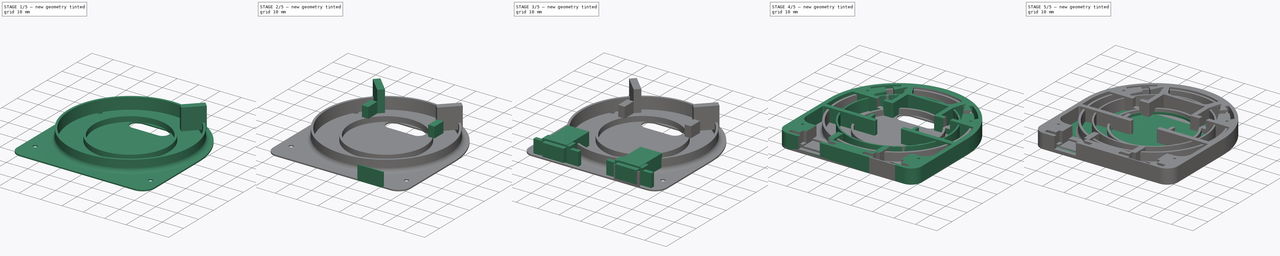
[diagram: build sequence overview — one tinted view per stage of 5, left to right]
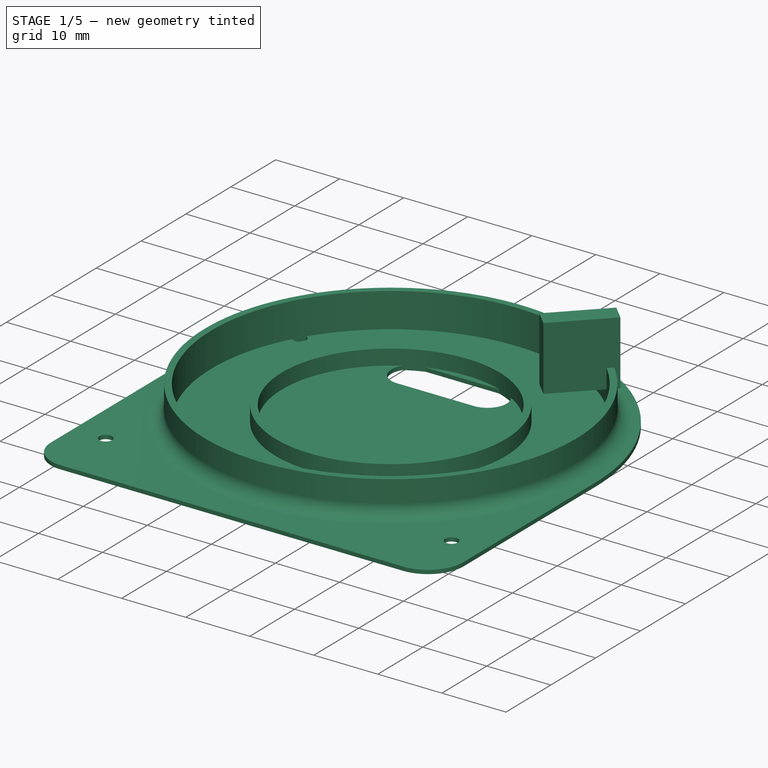
[diagram: stage 1 of 5 — iso view after this stage's code; geometry added in this stage tinted green]
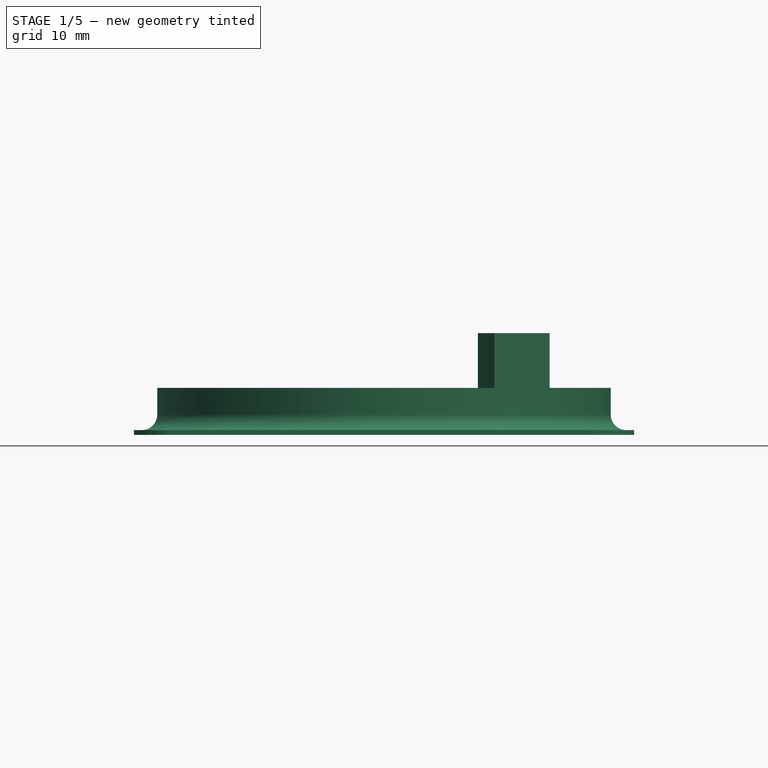
[diagram: stage 1 of 5 — front view after this stage's code; geometry added in this stage tinted green]
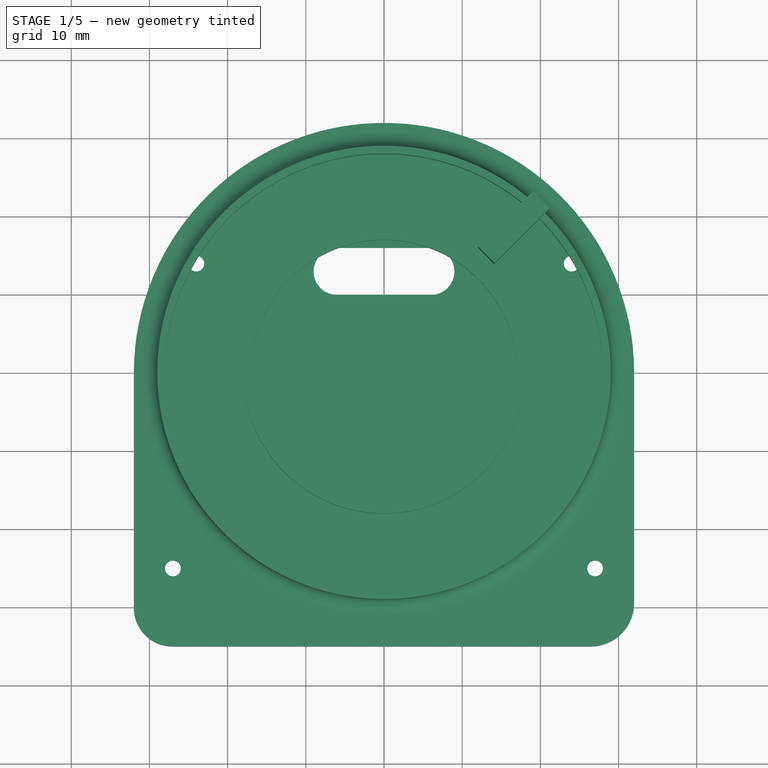
[diagram: stage 1 of 5 — top view after this stage's code; geometry added in this stage tinted green]
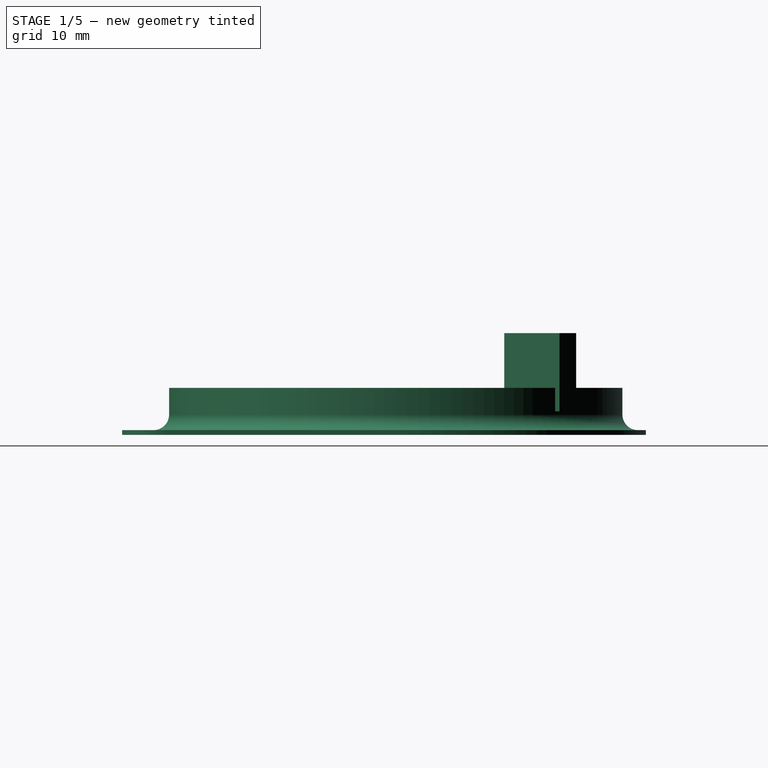
[diagram: stage 1 of 5 — right view after this stage's code; geometry added in this stage tinted green]
FCSTD DOCUMENT  (FreeCAD 0.20R29603 (Git))
Label: LEDlamp2
License: All rights reserved
LicenseURL: http://en.wikipedia.org/wiki/All_rights_reserved
objects: Part::Box×10, Sketcher::SketchObject×7, Part::MultiFuse×6, PartDesign::Body×5, PartDesign::Pad×5, Part::FeaturePython×4, Spreadsheet::Sheet×2, Part::Cut×2, Part::Extrusion×1, PartDesign::Pocket×1, Part::Fillet×1
note: 47 computed .brp shape members not serialized (recipe doc carries the construction recipe); baked Part::Feature solids carry a one-line shape summary decoded from their .brp

FEATURE [Part::Box] Box009  label="wire12"
  AttacherType = Attacher::AttachEngine3D
  Height = 10
  Length = 3
  Placement = pos=(12,16,3) rot=(0,0,-1;0.785398rad)
  Width = 10
FEATURE [PartDesign::Pad] Pad004
  Direction = (0,0,1)
  Length = 0.6
  Length2 = 10
  Profile = -> Sketch003
  ReferenceAxis = -> Sketch003 [N_Axis]
  Type = 0
FEATURE [PartDesign::Body] Body005
  Group = -> [Sketch003,Pad004]
  Origin = -> Origin005
  Tip = -> Pad004
FEATURE [Part::FeaturePython] Tube001  # WARN: FeaturePython — macro-defined, semantics opaque (R4)
  AttacherType = Attacher::AttachEngine3D
  Height = 6
  InnerRadius = 28
  OuterRadius = 29
FEATURE [Part::FeaturePython] Tube002  # WARN: FeaturePython — macro-defined, semantics opaque (R4)
  AttacherType = Attacher::AttachEngine3D
  Height = 3
  InnerRadius = 17
  OuterRadius = 18
FEATURE [Part::MultiFuse] Fusion005
  Shapes = -> [Body005,Tube001,Tube002]
FEATURE [Part::Fillet] Fillet  label="top_lotos_2"
  Base = -> Fusion005
  Edges = 1 edges r=2: [Edge22]
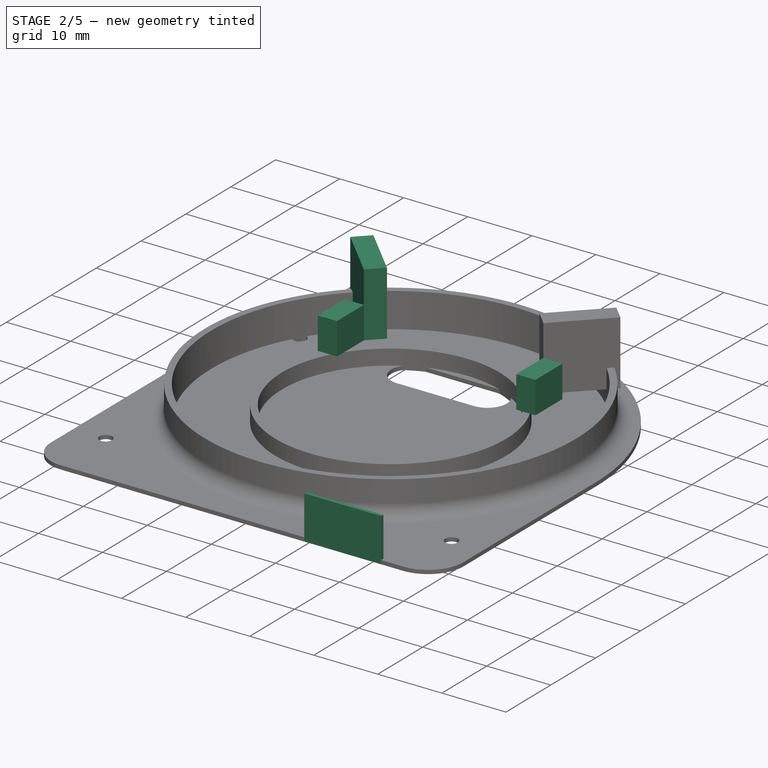
[diagram: stage 2 of 5 — iso view after this stage's code; geometry added in this stage tinted green]
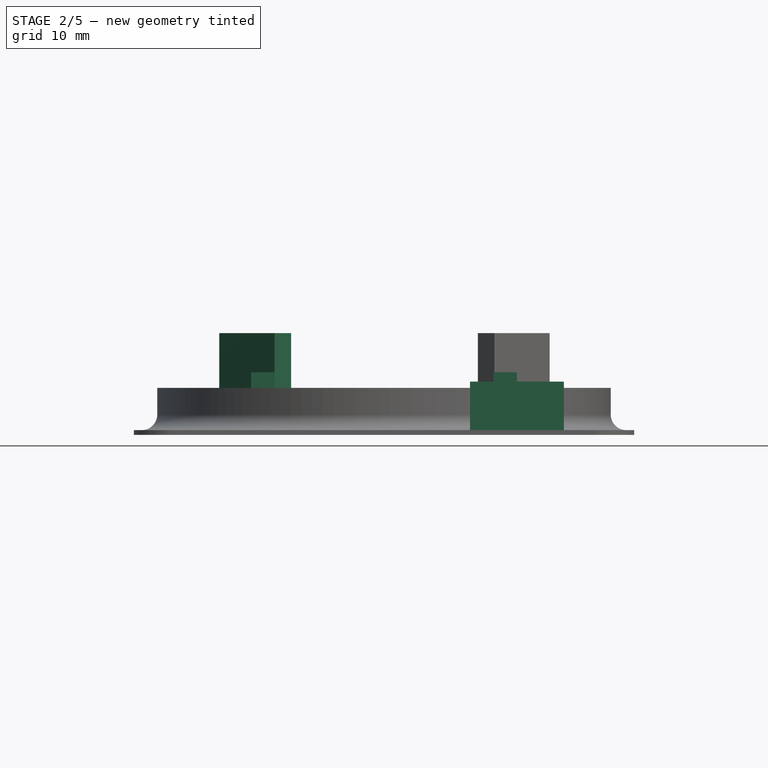
[diagram: stage 2 of 5 — front view after this stage's code; geometry added in this stage tinted green]
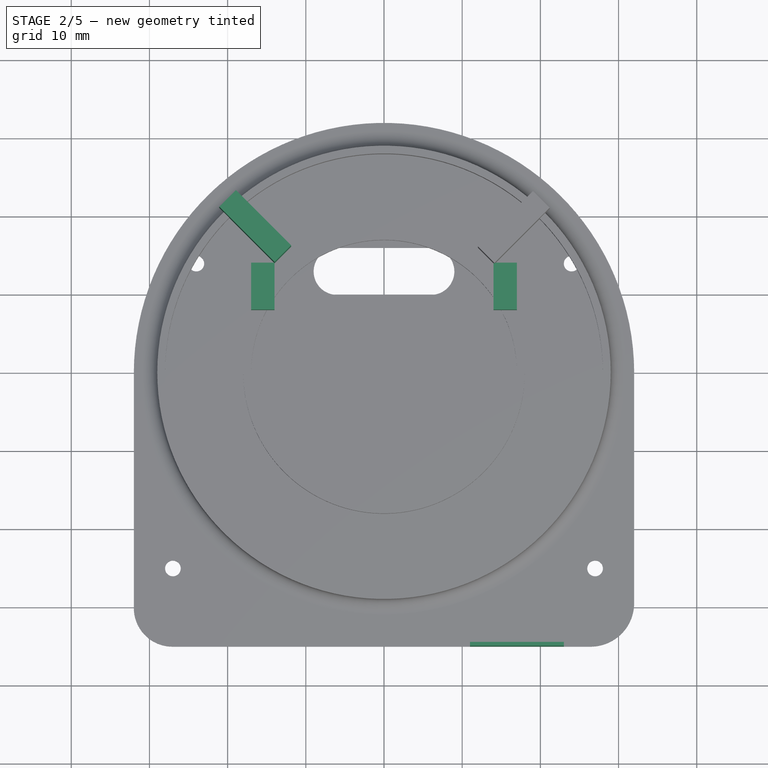
[diagram: stage 2 of 5 — top view after this stage's code; geometry added in this stage tinted green]
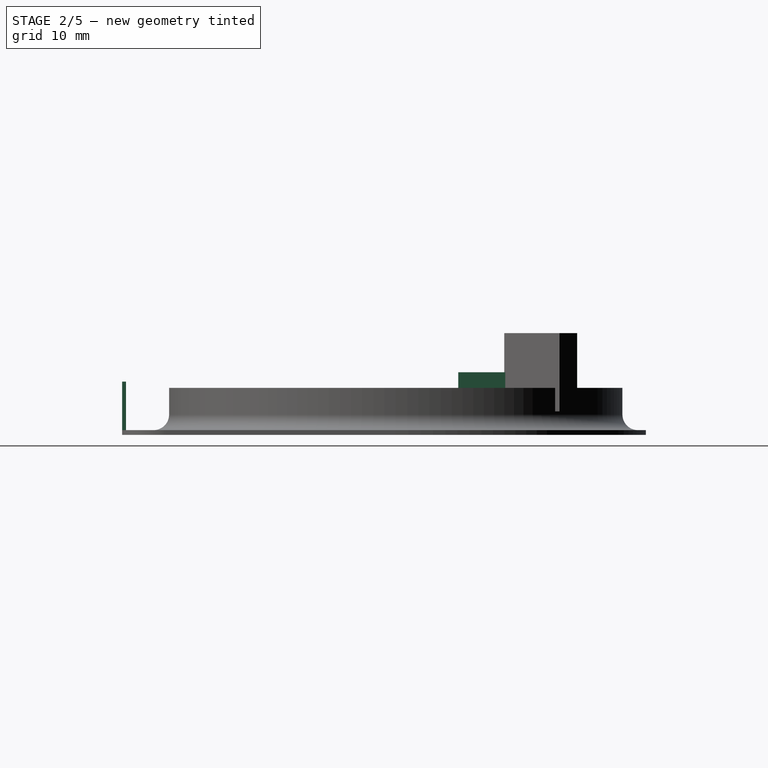
[diagram: stage 2 of 5 — right view after this stage's code; geometry added in this stage tinted green]
FEATURE [Part::Box] Box004  label="Куб"
  AttacherType = Attacher::AttachEngine3D
  Height = 0.6
  Length = 22
  Placement = pos=(-11,-31,0) rot=(0,0,1;0rad)
  Width = 29
FEATURE [Part::Box] Box005  label="Куб001"
  AttacherType = Attacher::AttachEngine3D
  Height = 6.8
  Length = 12
  Placement = pos=(11,-35,0) rot=(0,0,1;0rad)
  Width = 0.5
FEATURE [Part::Box] Box006  label="wire01"
  AttacherType = Attacher::AttachEngine3D
  Height = 5
  Length = 3
  Placement = pos=(-17,8,3) rot=(0,0,1;0rad)
  Width = 6
FEATURE [Part::Box] Box007  label="wire02"
  AttacherType = Attacher::AttachEngine3D
  Height = 5
  Length = 3
  Placement = pos=(14,8,3) rot=(0,0,1;0rad)
  Width = 6
FEATURE [Part::Box] Box008  label="wire11"
  AttacherType = Attacher::AttachEngine3D
  Height = 10
  Length = 3
  Placement = pos=(-14,14,3) rot=(0,0,1;0.785398rad)
  Width = 10
FEATURE [Part::MultiFuse] Fusion004  label="wires"
  Shapes = -> [Box006,Box007,Box008,Box009]
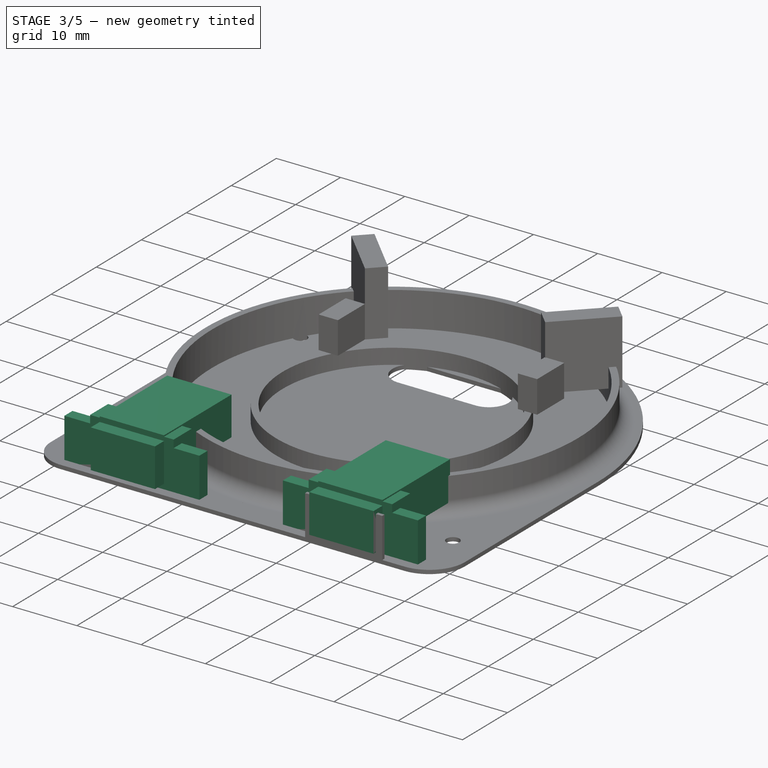
[diagram: stage 3 of 5 — iso view after this stage's code; geometry added in this stage tinted green]
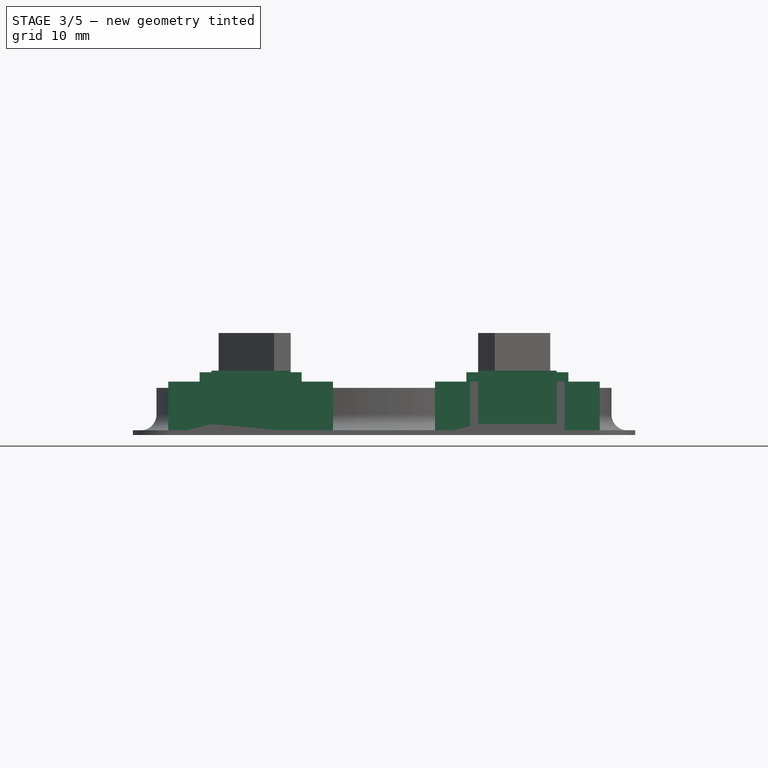
[diagram: stage 3 of 5 — front view after this stage's code; geometry added in this stage tinted green]
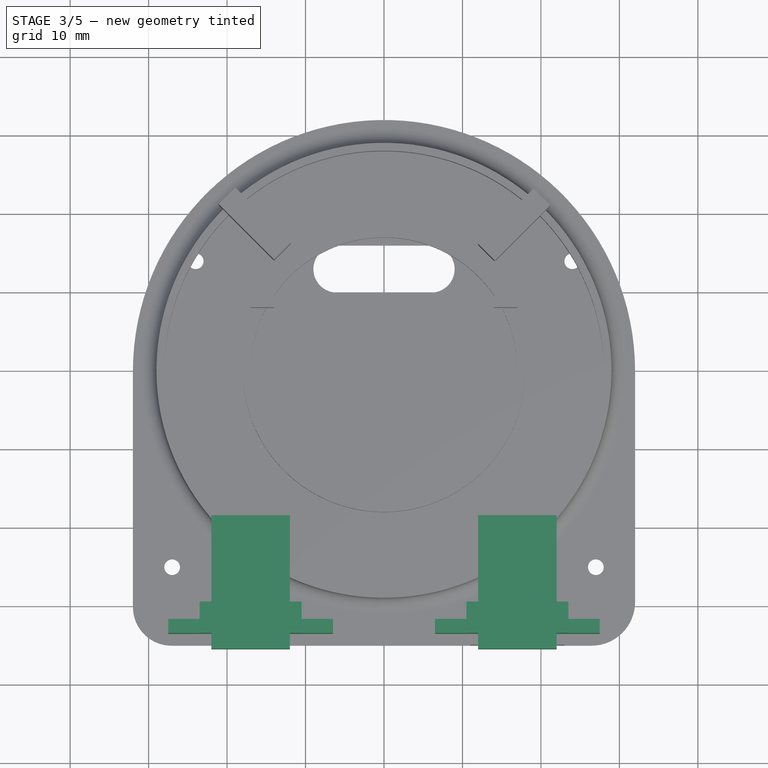
[diagram: stage 3 of 5 — top view after this stage's code; geometry added in this stage tinted green]
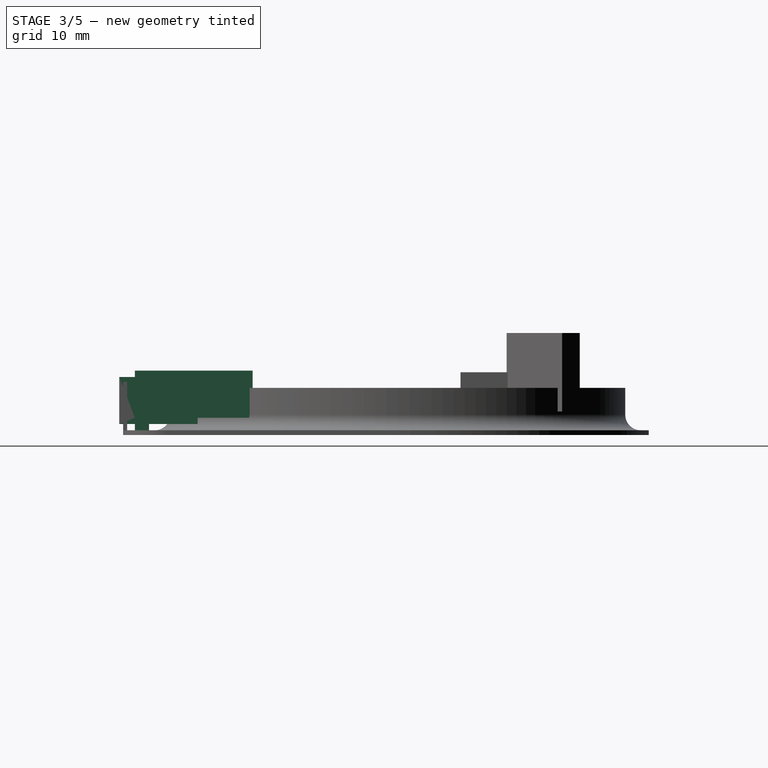
[diagram: stage 3 of 5 — right view after this stage's code; geometry added in this stage tinted green]
FEATURE [Part::Box] Box  label="front"
  AttacherType = Attacher::AttachEngine3D
  Height = 6.8
  Length = 21
  Placement = pos=(-10.5,0,0) rot=(0,0,1;0rad)
  Width = 1.8
  expr: .Placement.Base.x = -Spreadsheet001.frW / 2
  expr: Height = Spreadsheet001.frH
  expr: Length = Spreadsheet001.frW
  expr: Width = Spreadsheet001.frT
FEATURE [Spreadsheet::Sheet] Spreadsheet001  label="sprTypeC"
  cells = A2=front; B2(frH)=6.8; E2(tol)=6; B3(frW)=21; B4(frT)=1.8; A6=sch; B6(schW)=10; B7(schL)=15; A9=pin; B9(pinZ)=1.4; B10(pinL)=10; A12=solder; B12(solderW)=13
FEATURE [Part::Box] Box001  label="sch001"
  AttacherType = Attacher::AttachEngine3D
  Height = 6
  Length = 10
  Placement = pos=(-5,0,2.2) rot=(0,0,1;0rad)
  Width = 15
  expr: .Placement.Base.x = -Spreadsheet001.schW / 2
  expr: Height = Spreadsheet001.tol
  expr: Length = Spreadsheet001.schW
  expr: Width = Spreadsheet001.schL
FEATURE [Part::Box] Box002  label="pin"
  AttacherType = Attacher::AttachEngine3D
  Height = 6
  Length = 10
  Placement = pos=(-5,-2,1.4) rot=(0,0,1;0rad)
  Width = 10
  expr: .Placement.Base.x = -Spreadsheet001.pinL / 2
  expr: .Placement.Base.z = Spreadsheet001.pinZ
  expr: Height = Spreadsheet001.tol
  expr: Length = Spreadsheet001.pinL
FEATURE [Part::Box] Box003  label="solder"
  AttacherType = Attacher::AttachEngine3D
  Height = 6
  Length = 13
  Placement = pos=(-6.5,0,2) rot=(0,0,1;0rad)
  Width = 4
  expr: .Placement.Base.x = -Spreadsheet001.solderW / 2
  expr: Height = Spreadsheet001.tol
  expr: Length = Spreadsheet001.solderW
FEATURE [Part::MultiFuse] Fusion  label="typeC"
  Placement = pos=(-17,-33.5,0) rot=(0,0,1;0rad)
  Shapes = -> [Box,Box001,Box002,Box003]
  expr: .Placement.Base.x = -Spreadsheet.pwr5x
FEATURE [Part::FeaturePython] Array  # Draft array (typed FeaturePython)
  AlwaysSyncPlacement = false
  Angle = 360
  ArrayType = 0
  Axis = (0,0,1)
  Base = -> Fusion
  Center = (0,0,0)
  Count = 2
  ExpandArray = false
  Fuse = false
  IntervalAxis = (0,0,0)
  IntervalX = (34,0,0)
  IntervalY = (0,100,0)
  IntervalZ = (0,0,100)
  NumberCircles = 3
  NumberPolar = 5
  NumberX = 2
  NumberY = 1
  NumberZ = 1
  PlacementList = 2 placements: [(-17,-33.5,0),(17,-33.5,0)]
  RadialDistance = 50
  ScaleList = (2) [(1,1,1),(1,1,1)]
  Symmetry = 1
  TangentialDistance = 25
  expr: .IntervalX.x = 2 * Spreadsheet.pwr5x
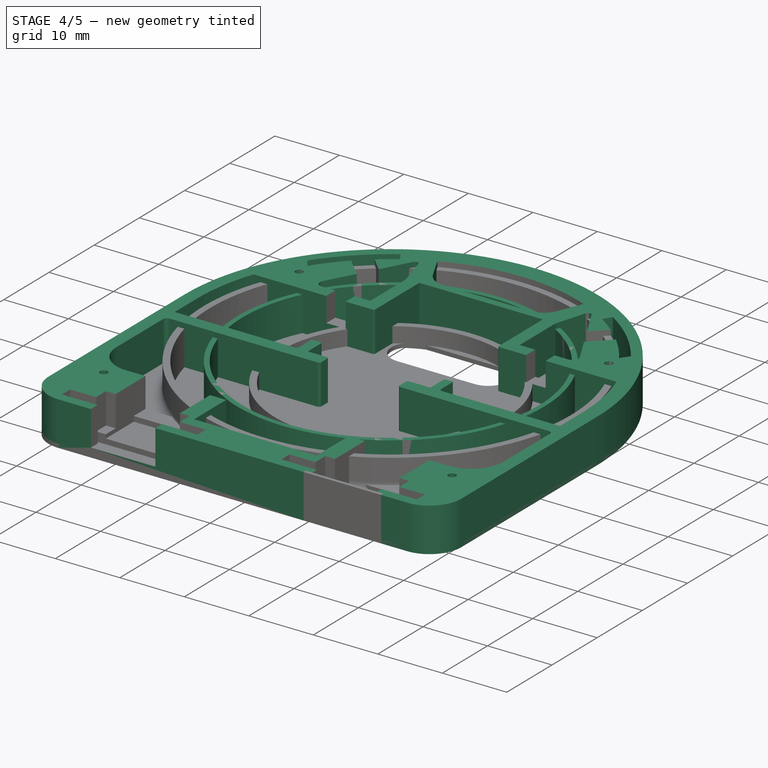
[diagram: stage 4 of 5 — iso view after this stage's code; geometry added in this stage tinted green]
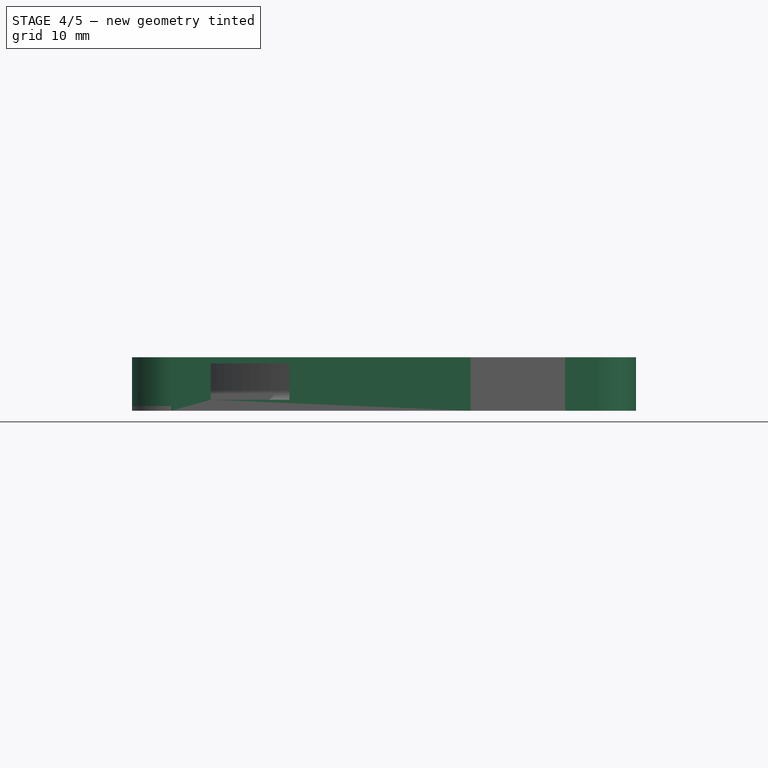
[diagram: stage 4 of 5 — front view after this stage's code; geometry added in this stage tinted green]
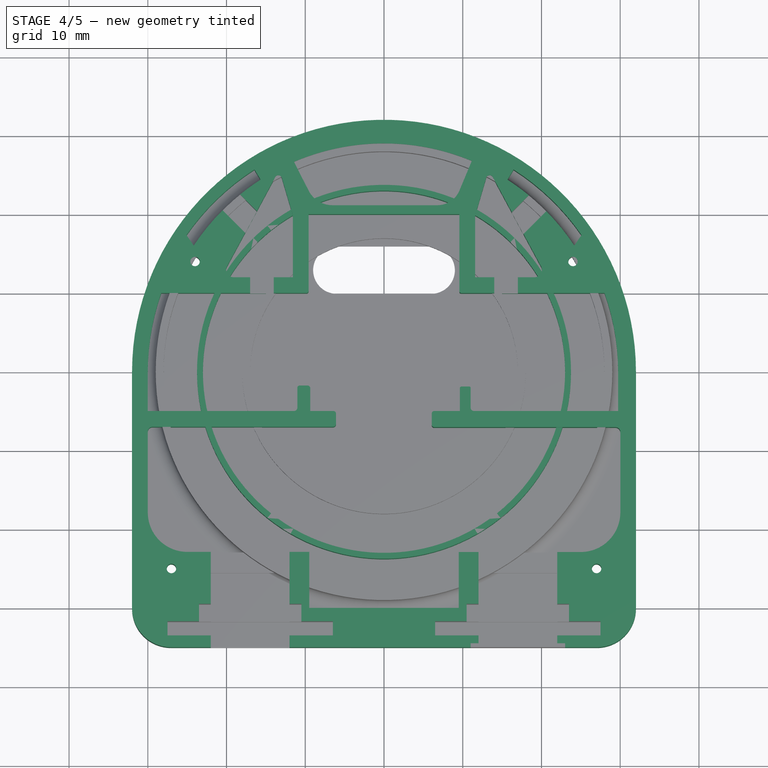
[diagram: stage 4 of 5 — top view after this stage's code; geometry added in this stage tinted green]
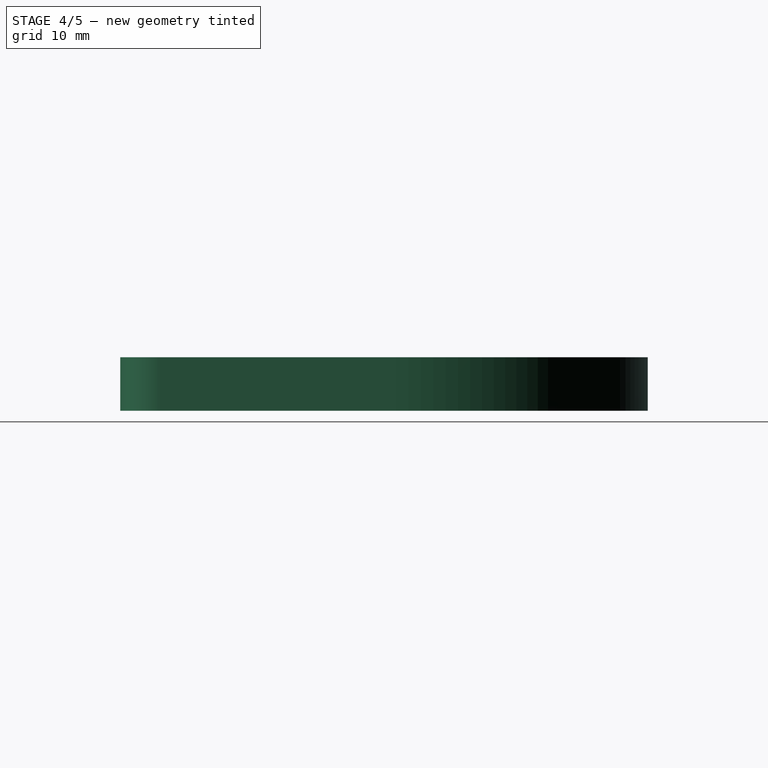
[diagram: stage 4 of 5 — right view after this stage's code; geometry added in this stage tinted green]
FEATURE [PartDesign::Body] Body  label="base"
  Group = -> [Sketch,Pad]
  Origin = -> Origin
  Tip = -> Pad
FEATURE [Part::Extrusion] Extrude
  Base = -> Sketch001
  Dir = (0,0,1)
  DirMode = 2
  FaceMakerClass = Part::FaceMakerBullseye
  LengthFwd = 6.8
  LengthRev = 0
  Solid = true
  Symmetric = false
FEATURE [Part::Cut] Cut
  Base = -> Extrude
  Tool = -> Array
FEATURE [PartDesign::Body] Body004  label="topL_1"
  Group = -> [Sketch004,Pad002,Sketch006,Pad003]
  Origin = -> Origin004
  Tip = -> Pad003
FEATURE [Part::MultiFuse] Fusion001
  Shapes = -> [Cut,Box004]
FEATURE [Part::FeaturePython] Tube  # WARN: FeaturePython — macro-defined, semantics opaque (R4)
  AttacherType = Attacher::AttachEngine3D
  Height = 6
  InnerRadius = 23
  OuterRadius = 23.75
  expr: InnerRadius = 46 / 2
  expr: OuterRadius = 47.5 / 2
FEATURE [Part::MultiFuse] Fusion003
  Shapes = -> [Fusion001,Box005]
FEATURE [Part::Cut] Cut001
  Base = -> Fusion003
  Tool = -> Fusion004
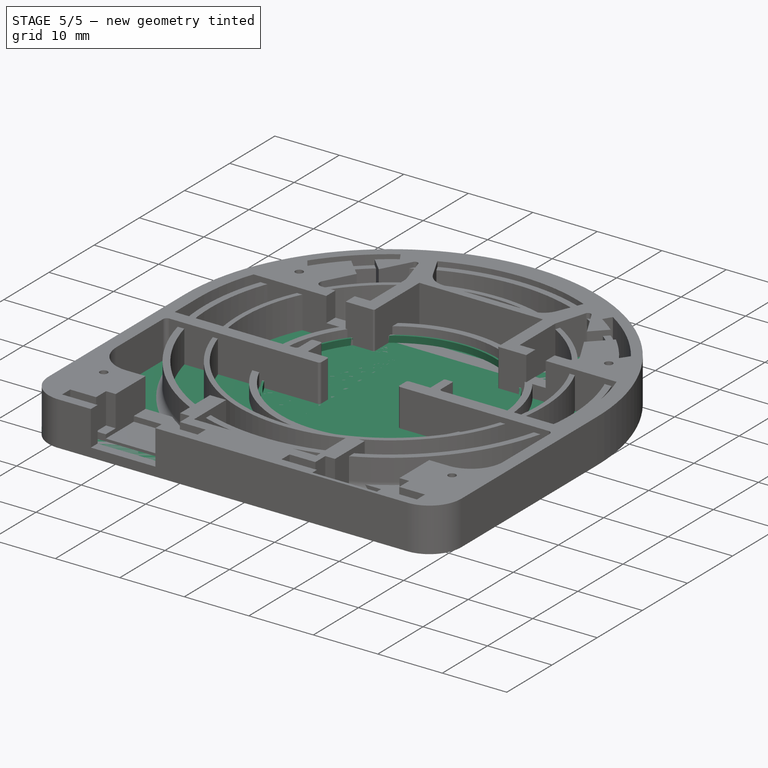
[diagram: stage 5 of 5 — iso view after this stage's code; geometry added in this stage tinted green]
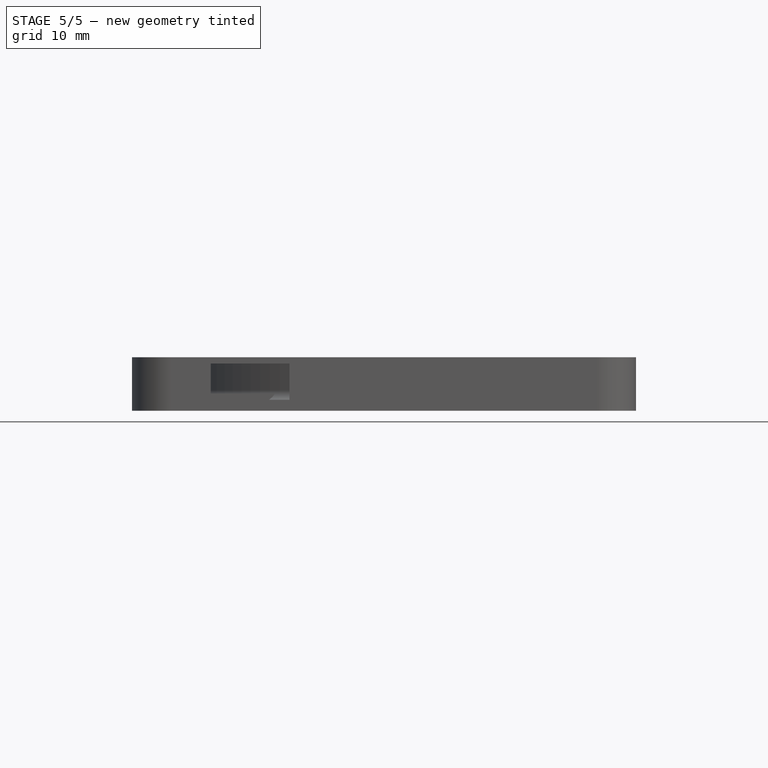
[diagram: stage 5 of 5 — front view after this stage's code; geometry added in this stage tinted green]
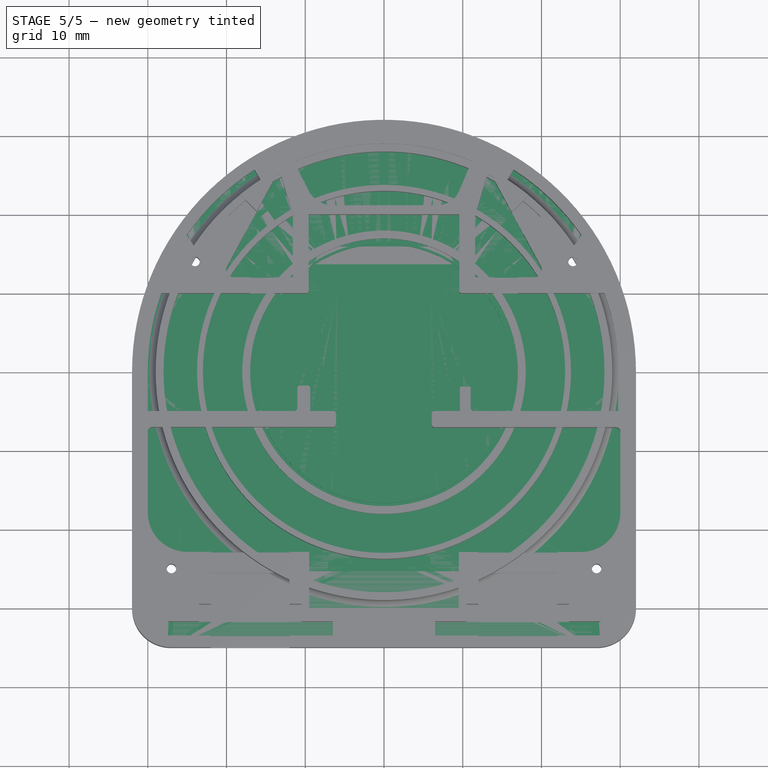
[diagram: stage 5 of 5 — top view after this stage's code; geometry added in this stage tinted green]
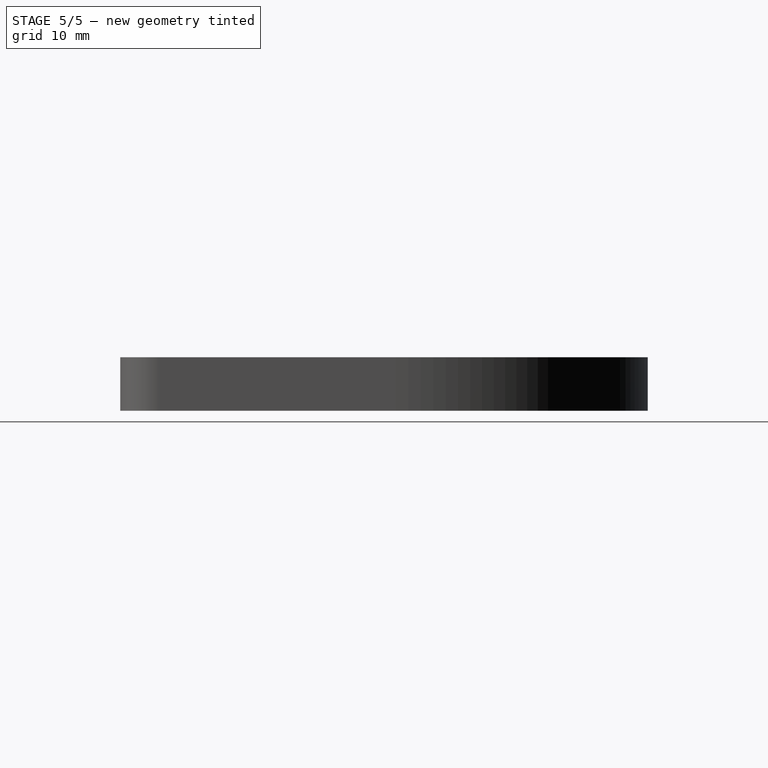
[diagram: stage 5 of 5 — right view after this stage's code; geometry added in this stage tinted green]
FEATURE [Spreadsheet::Sheet] Spreadsheet
  cells = A2=outArc; B2(outD)=64; B3(outH)=35; A5=touch; B5(tchY)=-5; B6(tchX)=11; A8(pwr5_X)=pwr5; B8(pwr5x)=17; A10=scr1Y; B10(scr1Y)=10; A11=scr2Y; B11(scr2Y)=14; A12=scr1D; B12(scr1D)=2; A13=scr2D; B13(scr2D)=2; A15=scr1X; B15(scr1X)=5; A16=scr2X; B16(scr2X)=24; A18=bodyScrew; B18(bodyScrew)=1.2
FEATURE [Sketcher::SketchObject] Sketch
  FullyConstrained = false
  MapMode = 5
  Support = -> [XY_Plane]
  expr: Constraints[17] = Spreadsheet.scr1D
  expr: Constraints[18] = Spreadsheet.scr1D
  expr: Constraints[19] = Spreadsheet.scr1Y
  expr: Constraints[20] = Spreadsheet.scr1X
  expr: Constraints[24] = Spreadsheet.scr2Y
  expr: Constraints[26] = Spreadsheet.scr2X
  expr: Constraints[3] = Spreadsheet.outD
  expr: Constraints[8] = Spreadsheet.outH
  sketch-geometry (12):
    g0: ArcOfCircle CenterX=0 CenterY=0 CenterZ=0 NormalX=0 NormalY=0 NormalZ=1 AngleXU=0 Radius=32 StartAngle=0 EndAngle=3.14159
    g1: LineSegment StartX=-32 StartY=3.9e-15 StartZ=0 EndX=-32 EndY=-30.0559 EndZ=0
    g2: LineSegment StartX=-27.0559 StartY=-35 StartZ=0 EndX=26.4276 EndY=-35 EndZ=0
    g3: LineSegment StartX=32 StartY=-29.4276 StartZ=0 EndX=32 EndY=0 EndZ=0
    g4: ArcOfCircle CenterX=-27.0559 CenterY=-30.0559 CenterZ=0 NormalX=0 NormalY=0 NormalZ=1 AngleXU=0 Radius=4.94407 StartAngle=3.14159 EndAngle=4.71239
    g5: GeomPoint X=-32 Y=-35 Z=0
    g6: ArcOfCircle CenterX=26.4276 CenterY=-29.4276 CenterZ=0 NormalX=0 NormalY=0 NormalZ=1 AngleXU=0 Radius=5.57244 StartAngle=4.71239 EndAngle=6.28319
    g7: GeomPoint X=32 Y=-35 Z=0
    g8: Circle CenterX=-27 CenterY=-25 CenterZ=0 NormalX=0 NormalY=0 NormalZ=1 AngleXU=0 Radius=1
    g9: Circle CenterX=27 CenterY=-25 CenterZ=0 NormalX=0 NormalY=0 NormalZ=1 AngleXU=0 Radius=1
    g10: Circle CenterX=24 CenterY=14 CenterZ=0 NormalX=0 NormalY=0 NormalZ=1 AngleXU=0 Radius=1
    g11: Circle CenterX=-24 CenterY=14 CenterZ=0 NormalX=0 NormalY=0 NormalZ=1 AngleXU=0 Radius=1
  constraints (27):
    c: Coincident(g0,g-1)
    c: PointOnObject(g0,g-1)
    c: PointOnObject(g0,g-1)
    c: Diameter(g0) = 64
    c: Tangent(g0,g1) = -1.5708
    c: Horizontal(g2)
    c: Coincident(g3,g0)
    c: Vertical(g3)
    c: DistanceY(g7,g3) = 35
    c: PointOnObject(g5,g1)
    c: PointOnObject(g5,g2)
    c: Tangent(g1,g4) = -1.5708
    c: Tangent(g2,g4) = -1.5708
    c: PointOnObject(g7,g2)
    c: PointOnObject(g7,g3)
    c: Tangent(g2,g6) = -1.5708
    c: Tangent(g3,g6) = -1.5708
    c: Diameter(g8) = 2
    c: Diameter(g9) = 2
    c: DistanceY(g2,g8) = 10
    c: DistanceX(g9,g3) = 5
    c: Symmetric(g8,g9,g-2)
    c: Equal(g9,g10)
    c: Equal(g10,g11)
    c: DistanceY(g-1,g11) = 14
    c: Symmetric(g10,g11,g-2)
    c: DistanceX(g11,g-1) = 24
FEATURE [Sketcher::SketchObject] Sketch001
  FullyConstrained = false
  MapMode = 5
  Support = -> [XY_Plane001]
  expr: Constraints[3] = Spreadsheet.outD
  expr: Constraints[55] = Spreadsheet.bodyScrew
  expr: Constraints[56] = Spreadsheet.scr1Y
  expr: Constraints[62] = Spreadsheet.bodyScrew
  expr: Constraints[64] = Spreadsheet.scr2X
  expr: Constraints[8] = Spreadsheet.outH
  sketch-geometry (90):
    g0: ArcOfCircle CenterX=0 CenterY=0 CenterZ=0 NormalX=0 NormalY=0 NormalZ=1 AngleXU=0 Radius=32 StartAngle=0 EndAngle=3.14159
    g1: LineSegment StartX=-32 StartY=3.9e-15 StartZ=0 EndX=-32 EndY=-30.0355 EndZ=0
    g2: LineSegment StartX=-27.0355 StartY=-35 StartZ=0 EndX=27.05 EndY=-35 EndZ=0
    g3: LineSegment StartX=32 StartY=-30.05 StartZ=0 EndX=32 EndY=0 EndZ=0
    g4: LineSegment StartX=-28.2835 StartY=10.0021 StartZ=0 EndX=-11.2835 EndY=10.0021 EndZ=0
    g5: LineSegment StartX=-11.45 StartY=-4.99792 StartZ=0 EndX=-30 EndY=-4.99792 EndZ=0
    g6: LineSegment StartX=11 StartY=10 StartZ=0 EndX=28 EndY=10 EndZ=0
    g7: LineSegment StartX=29.7321 StartY=-5 StartZ=0 EndX=11.4496 EndY=-5 EndZ=0
    g8: LineSegment StartX=9.5 StartY=-30 StartZ=0 EndX=-9.5 EndY=-30 EndZ=0
    g9: LineSegment StartX=-9.58091 StartY=20.0039 StartZ=0 EndX=9.58091 EndY=20.0039 EndZ=0
    g10: ArcOfCircle CenterX=0 CenterY=0 CenterZ=0 NormalX=0 NormalY=0 NormalZ=1 AngleXU=0 Radius=29 StartAngle=1.17614 EndAngle=1.97592
    g11: LineSegment StartX=-6.53689 StartY=21.1476 StartZ=0 EndX=6.77672 EndY=21.1476 EndZ=0
    g12: LineSegment StartX=11.1503 StartY=26.7707 StartZ=0 EndX=9.58106 EndY=23.0151 EndZ=0
    g13: LineSegment StartX=-9.58106 StartY=23.0151 StartZ=0 EndX=-11.4299 EndY=26.6525 EndZ=0
    g14: ArcOfCircle CenterX=6.77672 CenterY=24.1869 CenterZ=0 NormalX=0 NormalY=0 NormalZ=1 AngleXU=0 Radius=3.03931 StartAngle=4.71239 EndAngle=5.88739
    g15: ArcOfCircle CenterX=-6.53689 CenterY=24.5625 CenterZ=0 NormalX=0 NormalY=0 NormalZ=1 AngleXU=0 Radius=3.41485 StartAngle=3.61185 EndAngle=4.71239
    g16: ArcOfCircle CenterX=0 CenterY=0 CenterZ=0 NormalX=0 NormalY=0 NormalZ=1 AngleXU=0 Radius=30.5 StartAngle=2.14078 EndAngle=2.53646
    g17: ArcOfCircle CenterX=0 CenterY=0 CenterZ=0 NormalX=0 NormalY=0 NormalZ=1 AngleXU=0 Radius=29 StartAngle=2.14194 EndAngle=2.55597
    g18: LineSegment StartX=-15.6773 StartY=24.3972 StartZ=0 EndX=-16.4583 EndY=25.6783 EndZ=0
    g19: LineSegment StartX=-24.1677 StartY=16.0288 StartZ=0 EndX=-25.084 EndY=17.3505 EndZ=0
    g20: ArcOfCircle CenterX=0 CenterY=0 CenterZ=0 NormalX=0 NormalY=0 NormalZ=1 AngleXU=0 Radius=30.5 StartAngle=0.605132 EndAngle=1.00082
    g21: ArcOfCircle CenterX=0 CenterY=0 CenterZ=0 NormalX=0 NormalY=0 NormalZ=1 AngleXU=0 Radius=29 StartAngle=0.585621 EndAngle=0.999649
    g22: LineSegment StartX=16.4583 StartY=25.6783 StartZ=0 EndX=15.6773 EndY=24.3972 EndZ=0
    g23: LineSegment StartX=25.084 StartY=17.3505 StartZ=0 EndX=24.1677 EndY=16.0288 EndZ=0
    g24: ArcOfCircle CenterX=-27.0355 CenterY=-30.0355 CenterZ=0 NormalX=0 NormalY=0 NormalZ=1 AngleXU=0 Radius=4.96452 StartAngle=3.14159 EndAngle=4.71239
    g25: GeomPoint X=-32 Y=-35 Z=0
    g26: ArcOfCircle CenterX=27.05 CenterY=-30.05 CenterZ=0 NormalX=0 NormalY=0 NormalZ=1 AngleXU=0 Radius=4.95002 StartAngle=4.71239 EndAngle=6.28319
    g27: GeomPoint X=32 Y=-35 Z=0
    g28: LineSegment StartX=-11.5809 StartY=19.7379 StartZ=0 EndX=-11.5809 EndY=12 EndZ=0
    g29: LineSegment StartX=-19.9405 StartY=13.3757 StartZ=0 EndX=-13.8249 EndY=24.7091 EndZ=0
    g30: LineSegment StartX=-12.9758 StartY=24.6202 StartZ=0 EndX=-11.6207 EndY=20.014 EndZ=0
    g31: LineSegment StartX=12.9758 StartY=24.6202 StartZ=0 EndX=11.6207 EndY=20.014 EndZ=0
    g32: LineSegment StartX=11.5809 StartY=19.7379 StartZ=0 EndX=11.5809 EndY=12 EndZ=0
    g33: Circle CenterX=-27 CenterY=-25 CenterZ=0 NormalX=0 NormalY=0 NormalZ=1 AngleXU=0 Radius=0.6
    g34: Circle CenterX=27 CenterY=-25 CenterZ=0 NormalX=0 NormalY=0 NormalZ=1 AngleXU=0 Radius=0.6
    g35: LineSegment StartX=-19.1196 StartY=12 StartZ=0 EndX=-11.5809 EndY=12 EndZ=0
    g36: Circle CenterX=-24 CenterY=14 CenterZ=0 NormalX=0 NormalY=0 NormalZ=1 AngleXU=0 Radius=0.6
    g37: LineSegment StartX=13.8249 StartY=24.7091 StartZ=0 EndX=19.9405 EndY=13.3757 EndZ=0
    g38: LineSegment StartX=19.1196 StartY=12 StartZ=0 EndX=11.5809 EndY=12 EndZ=0
    g39: Circle CenterX=24 CenterY=14 CenterZ=0 NormalX=0 NormalY=0 NormalZ=1 AngleXU=0 Radius=0.6
    g40: ArcOfCircle CenterX=-24.9901 CenterY=-17.8792 CenterZ=0 NormalX=0 NormalY=0 NormalZ=1 AngleXU=0 Radius=5.00986 StartAngle=3.14159 EndAngle=4.71387
    g41: LineSegment StartX=-30 StartY=-11.2573 StartZ=0 EndX=-30 EndY=-17.8792 EndZ=0
    g42: ArcOfCircle CenterX=24.9901 CenterY=-17.8792 CenterZ=0 NormalX=0 NormalY=0 NormalZ=1 AngleXU=0 Radius=5.02597 StartAngle=4.71239 EndAngle=6.28319
    g43: LineSegment StartX=30.0161 StartY=-17.8792 StartZ=0 EndX=30.0161 EndY=-11.2571 EndZ=0
    g44: ArcOfCircle CenterX=0 CenterY=0 CenterZ=0 NormalX=0 NormalY=0 NormalZ=1 AngleXU=0 Radius=30 StartAngle=2.80168 EndAngle=3.14159
    g45: LineSegment StartX=-30 StartY=-4.99792 StartZ=0 EndX=-30 EndY=3.6e-15 EndZ=0
    g46: ArcOfCircle CenterX=0 CenterY=0 CenterZ=0 NormalX=0 NormalY=0 NormalZ=1 AngleXU=0 Radius=29.7321 StartAngle=0 EndAngle=0.343024
    g47: LineSegment StartX=29.7321 StartY=-5 StartZ=0 EndX=29.7321 EndY=0 EndZ=0
    g48: LineSegment StartX=-30 StartY=-11.2573 StartZ=0 EndX=-30 EndY=-7.60208 EndZ=0
    g49: LineSegment StartX=-29.4006 StartY=-7.00267 StartZ=0 EndX=-6.47729 EndY=-7.00267 EndZ=0
    g50: LineSegment StartX=6.39012 StartY=-7.04931 StartZ=0 EndX=29.4016 EndY=-7.04931 EndZ=0
    g51: LineSegment StartX=30.0161 StartY=-7.66384 StartZ=0 EndX=30.0161 EndY=-11.2571 EndZ=0
    g52: LineSegment StartX=-9.5 StartY=-30 StartZ=0 EndX=-9.5 EndY=-22.8891 EndZ=0
    g53: LineSegment StartX=9.5 StartY=-30 StartZ=0 EndX=9.5 EndY=-22.9052 EndZ=0
    g54: LineSegment StartX=-9.36535 StartY=-4.99876 StartZ=0 EndX=-6.41079 EndY=-4.99876 EndZ=0
    g55: LineSegment StartX=-6.10092 StartY=-5.30862 StartZ=0 EndX=-6.10092 EndY=-6.62631 EndZ=0
    g56: LineSegment StartX=9.63465 StartY=-4.99608 StartZ=0 EndX=6.38742 EndY=-4.99608 EndZ=0
    g57: LineSegment StartX=6.05794 StartY=-5.32556 StartZ=0 EndX=6.05794 EndY=-6.71713 EndZ=0
    g58: LineSegment StartX=9.58091 StartY=20.0039 StartZ=0 EndX=9.58091 EndY=10.2007 EndZ=0
    g59: LineSegment StartX=9.7816 StartY=10 StartZ=0 EndX=11 EndY=10 EndZ=0
    g60: LineSegment StartX=9.63465 StartY=-4.99608 StartZ=0 EndX=9.63465 EndY=-2.07935 EndZ=0
    g61: LineSegment StartX=9.8269 StartY=-1.88711 StartZ=0 EndX=10.8385 EndY=-1.88711 EndZ=0
    g62: LineSegment StartX=10.999 StartY=-2.04761 StartZ=0 EndX=10.999 EndY=-4.54943 EndZ=0
    g63: LineSegment StartX=-9.58091 StartY=20.0039 StartZ=0 EndX=-9.58091 EndY=10.2429 EndZ=0
    g64: LineSegment StartX=-9.8217 StartY=10.0021 StartZ=0 EndX=-11.2835 EndY=10.0021 EndZ=0
    g65: LineSegment StartX=-11.0021 StartY=-4.54998 StartZ=0 EndX=-11.0021 EndY=-2.04731 EndZ=0
    g66: LineSegment StartX=-10.7069 StartY=-1.75209 StartZ=0 EndX=-9.69528 EndY=-1.75209 EndZ=0
    g67: LineSegment StartX=-9.36535 StartY=-2.08203 StartZ=0 EndX=-9.36535 EndY=-4.99876 EndZ=0
    g68: ArcOfCircle CenterX=-19.1196 CenterY=12.9328 CenterZ=0 NormalX=0 NormalY=0 NormalZ=1 AngleXU=0 Radius=0.932779 StartAngle=2.64676 EndAngle=4.71239
    g69: ArcOfCircle CenterX=19.1196 CenterY=12.9328 CenterZ=0 NormalX=0 NormalY=0 NormalZ=1 AngleXU=0 Radius=0.932779 StartAngle=4.71239 EndAngle=6.77802
    g70: ArcOfCircle CenterX=-13.4187 CenterY=24.4899 CenterZ=0 NormalX=0 NormalY=0 NormalZ=1 AngleXU=0 Radius=0.461614 StartAngle=0.286129 EndAngle=2.64676
    g71: ArcOfCircle CenterX=13.4187 CenterY=24.4899 CenterZ=0 NormalX=0 NormalY=0 NormalZ=1 AngleXU=0 Radius=0.461614 StartAngle=0.494832 EndAngle=2.85546
    g72: ArcOfCircle CenterX=-12.5593 CenterY=19.7379 CenterZ=0 NormalX=0 NormalY=0 NormalZ=1 AngleXU=0 Radius=0.978363 StartAngle=0 EndAngle=0.286129
    g73: ArcOfCircle CenterX=12.5593 CenterY=19.7379 CenterZ=0 NormalX=0 NormalY=0 NormalZ=1 AngleXU=0 Radius=0.978363 StartAngle=2.85546 EndAngle=3.14159
    g74: ArcOfCircle CenterX=9.7816 CenterY=10.2007 CenterZ=0 NormalX=0 NormalY=0 NormalZ=1 AngleXU=0 Radius=0.20069 StartAngle=3.14159 EndAngle=4.71239
    g75: ArcOfCircle CenterX=29.4016 CenterY=-7.66384 CenterZ=0 NormalX=0 NormalY=0 NormalZ=1 AngleXU=0 Radius=0.614534 StartAngle=0 EndAngle=1.5708
    g76: ArcOfCircle CenterX=-29.4006 CenterY=-7.60208 CenterZ=0 NormalX=0 NormalY=0 NormalZ=1 AngleXU=0 Radius=0.599403 StartAngle=1.5708 EndAngle=3.14159
    g77: ArcOfCircle CenterX=-6.47729 CenterY=-6.62631 CenterZ=0 NormalX=0 NormalY=0 NormalZ=1 AngleXU=0 Radius=0.376366 StartAngle=4.71239 EndAngle=6.28319
    g78: ArcOfCircle CenterX=-6.41079 CenterY=-5.30862 CenterZ=0 NormalX=0 NormalY=0 NormalZ=1 AngleXU=0 Radius=0.309867 StartAngle=9e-16 EndAngle=1.5708
    g79: ArcOfCircle CenterX=6.39012 CenterY=-6.71713 CenterZ=0 NormalX=0 NormalY=0 NormalZ=1 AngleXU=0 Radius=0.332185 StartAngle=3.14159 EndAngle=4.71239
    g80: ArcOfCircle CenterX=6.38742 CenterY=-5.32556 CenterZ=0 NormalX=0 NormalY=0 NormalZ=1 AngleXU=0 Radius=0.329482 StartAngle=1.5708 EndAngle=3.14159
    g81: ArcOfCircle CenterX=-11.45 CenterY=-4.54998 CenterZ=0 NormalX=0 NormalY=0 NormalZ=1 AngleXU=0 Radius=0.447942 StartAngle=4.71239 EndAngle=6.28319
    g82: ArcOfCircle CenterX=11.4496 CenterY=-4.54943 CenterZ=0 NormalX=0 NormalY=0 NormalZ=1 AngleXU=0 Radius=0.450575 StartAngle=3.14159 EndAngle=4.71239
    g83: ArcOfCircle CenterX=-10.7069 CenterY=-2.04731 CenterZ=0 NormalX=0 NormalY=0 NormalZ=1 AngleXU=0 Radius=0.295218 StartAngle=1.5708 EndAngle=3.14159
    g84: ArcOfCircle CenterX=-9.69528 CenterY=-2.08203 CenterZ=0 NormalX=0 NormalY=0 NormalZ=1 AngleXU=0 Radius=0.329938 StartAngle=0 EndAngle=1.5708
    g85: ArcOfCircle CenterX=9.8269 CenterY=-2.07935 CenterZ=0 NormalX=0 NormalY=0 NormalZ=1 AngleXU=0 Radius=0.192244 StartAngle=1.5708 EndAngle=3.14159
    g86: ArcOfCircle CenterX=10.8385 CenterY=-2.04761 CenterZ=0 NormalX=0 NormalY=0 NormalZ=1 AngleXU=0 Radius=0.160505 StartAngle=8e-16 EndAngle=1.5708
    g87: ArcOfCircle CenterX=-9.8217 CenterY=10.2429 CenterZ=0 NormalX=0 NormalY=0 NormalZ=1 AngleXU=0 Radius=0.240788 StartAngle=4.71239 EndAngle=6.28319
    g88: LineSegment StartX=-24.9827 StartY=-22.8891 StartZ=0 EndX=-9.5 EndY=-22.8891 EndZ=0
    g89: LineSegment StartX=24.9901 StartY=-22.9052 StartZ=0 EndX=9.5 EndY=-22.9052 EndZ=0
  constraints (171):
    c: Coincident(g0,g-1)
    c: PointOnObject(g0,g-1)
    c: PointOnObject(g0,g-1)
    c: Diameter(g0) = 64
    c: Tangent(g0,g1) = -1.5708
    c: Horizontal(g2)
    c: Coincident(g3,g0)
    c: Vertical(g3)
    c: DistanceY(g27,g3) = 35
    c: Horizontal(g4)
    c: Horizontal(g5)
    c: Horizontal(g6)
    c: Horizontal(g7)
    c: Equal(g6,g4)
    c: DistanceY(g7,g6) = 15
    c: Symmetric(g8,g8,g-2)
    c: DistanceX(g8,g8) = 19
    c: Symmetric(g9,g9,g-2)
    c: DistanceX(g54,g56) = 19
    c: DistanceY(g56,g9) = 25
    c: DistanceY(g27,g8) = 5
    c: Coincident(g10,g0)
    c: Radius(g10) = 29
    c: Coincident(g12,g10)
    c: Coincident(g13,g10)
    c: Tangent(g11,g14) = -1.5708
    c: Tangent(g12,g14) = 1.5708
    c: Tangent(g11,g15) = -1.5708
    c: Tangent(g13,g15) = 1.5708
    c: Horizontal(g11)
    c: Symmetric(g13,g12,g-2)
    c: Coincident(g16,g0)
    c: Radius(g16) = 30.5
    c: Coincident(g17,g0)
    c: Radius(g17) = 29
    c: Coincident(g18,g17)
    c: Coincident(g18,g16)
    c: Coincident(g19,g17)
    c: Coincident(g19,g16)
    c: Coincident(g20,g0)
    c: Coincident(g21,g0)
    c: Coincident(g22,g20)
    c: Coincident(g22,g21)
    c: Coincident(g23,g20)
    c: Coincident(g23,g21)
    c: PointOnObject(g25,g1)
    c: PointOnObject(g25,g2)
    c: Tangent(g1,g24) = -1.5708
    c: Tangent(g2,g24) = -1.5708
    c: PointOnObject(g27,g2)
    c: PointOnObject(g27,g3)
    c: Tangent(g2,g26) = -1.5708
    c: Tangent(g3,g26) = -1.5708
    c: Vertical(g28)
    c: Symmetric(g28,g32,g-2)
    c: Diameter(g33) = 1.2
    c: DistanceY(g2,g33) = 10
    c: Equal(g34,g33)
    c: Symmetric(g33,g34,g-2)
    c: DistanceX(g1,g33) = 5
    c: Coincident(g35,g28)
    c: Coincident(g38,g32)
    c: Diameter(g36) = 1.2
    c: Equal(g36,g39)
    c: DistanceX(g36,g0) = 24
    c: Symmetric(g39,g36,g-2)
    c: DistanceY(g0,g36) = 14
    c: Tangent(g41,g40) = -1.5708
    c: Tangent(g42,g43) = -1.5708
    c: Symmetric(g40,g42,g-2)
    c: Vertical(g41)
    c: DistanceX(g1,g40) = 2
    c: DistanceX(g6,g6) = 17
    c: Coincident(g44,g0)
    c: Coincident(g44,g4)
    c: PointOnObject(g44,g-1)
    c: Coincident(g45,g5)
    c: Coincident(g45,g44)
    c: Vertical(g45)
    c: Coincident(g46,g0)
    c: Coincident(g46,g6)
    c: PointOnObject(g46,g-1)
    c: Coincident(g47,g7)
    c: Coincident(g47,g46)
    c: Vertical(g47)
    c: Coincident(g41,g48)
    c: Vertical(g48)
    c: Horizontal(g49)
    c: Horizontal(g50)
    c: Coincident(g51,g43)
    c: Vertical(g51)
    c: Vertical(g43)
    c: Coincident(g8,g52)
    c: Vertical(g52)
    c: Coincident(g8,g53)
    c: Vertical(g53)
    c: Horizontal(g54)
    c: Horizontal(g56)
    c: Vertical(g57)
    c: DistanceX(g0,g5) = 2
    c: Coincident(g9,g58)
    c: Vertical(g58)
    c: Coincident(g59,g6)
    c: Horizontal(g59)
    c: Coincident(g56,g60)
    c: Vertical(g60)
    c: Horizontal(g61)
    c: Vertical(g62)
    c: Coincident(g9,g63)
    c: Vertical(g63)
    c: Coincident(g64,g4)
    c: Horizontal(g64)
    c: Vertical(g65)
    c: Horizontal(g66)
    c: Coincident(g67,g54)
    c: Vertical(g67)
    c: Equal(g67,g60)
    c: Equal(g61,g66)
    c: Horizontal(g35)
    c: DistanceY(g5,g4) = 15
    c: Tangent(g29,g68) = 1.5708
    c: Tangent(g35,g68) = -1.5708
    c: Tangent(g37,g69) = 1.5708
    c: Tangent(g38,g69) = 1.5708
    c: Tangent(g29,g70) = 1.5708
    c: Tangent(g30,g70) = 1.5708
    c: Tangent(g31,g71) = -1.5708
    c: Tangent(g37,g71) = 1.5708
    c: Tangent(g28,g72) = 1.5708
    c: Tangent(g30,g72) = 1.5708
    c: Tangent(g31,g73) = -1.5708
    c: Tangent(g32,g73) = -1.5708
    c: Tangent(g58,g74) = -1.5708
    c: Tangent(g59,g74) = -1.5708
    c: Tangent(g50,g75) = 1.5708
    c: Tangent(g51,g75) = 1.5708
    c: Tangent(g48,g76) = 1.5708
    c: Tangent(g49,g76) = 1.5708
    c: Tangent(g49,g77) = -1.5708
    c: Tangent(g55,g77) = 1.5708
    c: Tangent(g54,g78) = 1.5708
    c: Tangent(g55,g78) = 1.5708
    c: Tangent(g50,g79) = -1.5708
    c: Tangent(g57,g79) = -1.5708
    c: Tangent(g56,g80) = -1.5708
    c: Tangent(g57,g80) = -1.5708
    c: Vertical(g55)
    c: Tangent(g5,g81) = 1.5708
    c: Tangent(g65,g81) = -1.5708
    c: Tangent(g7,g82) = 1.5708
    c: Tangent(g62,g82) = -1.5708
    c: Tangent(g65,g83) = 1.5708
    c: Tangent(g66,g83) = 1.5708
    c: Tangent(g66,g84) = 1.5708
    c: Tangent(g67,g84) = 1.5708
    c: Tangent(g60,g85) = 1.5708
    c: Tangent(g61,g85) = 1.5708
    c: Tangent(g61,g86) = 1.5708
    c: Tangent(g62,g86) = 1.5708
    c: Tangent(g63,g87) = 1.5708
    c: Tangent(g64,g87) = 1.5708
    c: Coincident(g88,g40)
    c: Horizontal(g88)
    c: Coincident(g52,g88)
    c: Coincident(g89,g42)
    c: Horizontal(g89)
    c: Coincident(g53,g89)
    c: Symmetric(g17,g21,g-2)
    c: Symmetric(g16,g20,g-2)
    c: Symmetric(g17,g21,g-2)
    c: Symmetric(g16,g20,g-2)
FEATURE [PartDesign::Body] Body001  label="sch"
  Group = -> [Sketch001]
  Origin = -> Origin001
FEATURE [PartDesign::Pad] Pad
  Direction = (0,0,1)
  Length = 1
  Length2 = 10
  Profile = -> Sketch
  ReferenceAxis = -> Sketch [N_Axis]
  Type = 0
FEATURE [Sketcher::SketchObject] Sketch002
  FullyConstrained = false
  MapMode = 5
  Support = -> [XY_Plane006]
  expr: Constraints[17] = Spreadsheet.scr1D
  expr: Constraints[18] = Spreadsheet.scr1D
  expr: Constraints[19] = Spreadsheet.scr1Y
  expr: Constraints[20] = Spreadsheet.scr1X
  expr: Constraints[24] = Spreadsheet.scr2Y
  expr: Constraints[26] = Spreadsheet.scr2X
  expr: Constraints[3] = Spreadsheet.outD
  expr: Constraints[8] = Spreadsheet.outH
  sketch-geometry (12):
    g0: ArcOfCircle CenterX=0 CenterY=0 CenterZ=0 NormalX=0 NormalY=0 NormalZ=1 AngleXU=0 Radius=32 StartAngle=0 EndAngle=3.14159
    g1: LineSegment StartX=-32 StartY=3.9e-15 StartZ=0 EndX=-32 EndY=-30.0559 EndZ=0
    g2: LineSegment StartX=-27.0559 StartY=-35 StartZ=0 EndX=26.4276 EndY=-35 EndZ=0
    g3: LineSegment StartX=32 StartY=-29.4276 StartZ=0 EndX=32 EndY=0 EndZ=0
    g4: ArcOfCircle CenterX=-27.0559 CenterY=-30.0559 CenterZ=0 NormalX=0 NormalY=0 NormalZ=1 AngleXU=0 Radius=4.94407 StartAngle=3.14159 EndAngle=4.71239
    g5: GeomPoint X=-32 Y=-35 Z=0
    g6: ArcOfCircle CenterX=26.4276 CenterY=-29.4276 CenterZ=0 NormalX=0 NormalY=0 NormalZ=1 AngleXU=0 Radius=5.57244 StartAngle=4.71239 EndAngle=6.28319
    g7: GeomPoint X=32 Y=-35 Z=0
    g8: Circle CenterX=-27 CenterY=-25 CenterZ=0 NormalX=0 NormalY=0 NormalZ=1 AngleXU=0 Radius=1
    g9: Circle CenterX=27 CenterY=-25 CenterZ=0 NormalX=0 NormalY=0 NormalZ=1 AngleXU=0 Radius=1
    g10: Circle CenterX=24 CenterY=14 CenterZ=0 NormalX=0 NormalY=0 NormalZ=1 AngleXU=0 Radius=1
    g11: Circle CenterX=-24 CenterY=14 CenterZ=0 NormalX=0 NormalY=0 NormalZ=1 AngleXU=0 Radius=1
  constraints (27):
    c: Coincident(g0,g-1)
    c: PointOnObject(g0,g-1)
    c: PointOnObject(g0,g-1)
    c: Diameter(g0) = 64
    c: Tangent(g0,g1) = -1.5708
    c: Horizontal(g2)
    c: Coincident(g3,g0)
    c: Vertical(g3)
    c: DistanceY(g7,g3) = 35
    c: PointOnObject(g5,g1)
    c: PointOnObject(g5,g2)
    c: Tangent(g1,g4) = -1.5708
    c: Tangent(g2,g4) = -1.5708
    c: PointOnObject(g7,g2)
    c: PointOnObject(g7,g3)
    c: Tangent(g2,g6) = -1.5708
    c: Tangent(g3,g6) = -1.5708
    c: Diameter(g8) = 2
    c: Diameter(g9) = 2
    c: DistanceY(g2,g8) = 10
    c: DistanceX(g9,g3) = 5
    c: Symmetric(g8,g9,g-2)
    c: Equal(g9,g10)
    c: Equal(g10,g11)
    c: DistanceY(g-1,g11) = 14
    c: Symmetric(g10,g11,g-2)
    c: DistanceX(g11,g-1) = 24
FEATURE [Sketcher::SketchObject] Sketch003
  FullyConstrained = false
  MapMode = 5
  Support = -> [XY_Plane008]
  expr: Constraints[17] = Spreadsheet.scr1D
  expr: Constraints[18] = Spreadsheet.scr1D
  expr: Constraints[19] = Spreadsheet.scr1Y
  expr: Constraints[20] = Spreadsheet.scr1X
  expr: Constraints[24] = Spreadsheet.scr2Y
  expr: Constraints[26] = Spreadsheet.scr2X
  expr: Constraints[3] = Spreadsheet.outD
  expr: Constraints[8] = Spreadsheet.outH
  sketch-geometry (16):
    g0: ArcOfCircle CenterX=0 CenterY=0 CenterZ=0 NormalX=0 NormalY=0 NormalZ=1 AngleXU=0 Radius=32 StartAngle=0 EndAngle=3.14159
    g1: LineSegment StartX=-32 StartY=0 StartZ=0 EndX=-32 EndY=-30.0559 EndZ=0
    g2: LineSegment StartX=-27.0559 StartY=-35 StartZ=0 EndX=26.4275 EndY=-35 EndZ=0
    g3: LineSegment StartX=32 StartY=-29.4275 StartZ=0 EndX=32 EndY=0 EndZ=0
    g4: ArcOfCircle CenterX=-27.0559 CenterY=-30.0559 CenterZ=0 NormalX=0 NormalY=0 NormalZ=1 AngleXU=0 Radius=4.94407 StartAngle=3.14159 EndAngle=4.71239
    g5: GeomPoint X=-32 Y=-35 Z=0
    g6: ArcOfCircle CenterX=26.4275 CenterY=-29.4275 CenterZ=0 NormalX=0 NormalY=0 NormalZ=1 AngleXU=0 Radius=5.57254 StartAngle=4.71239 EndAngle=6.28319
    g7: GeomPoint X=32 Y=-35 Z=0
    g8: Circle CenterX=-27 CenterY=-25 CenterZ=0 NormalX=0 NormalY=0 NormalZ=1 AngleXU=0 Radius=1
    g9: Circle CenterX=27 CenterY=-25 CenterZ=0 NormalX=0 NormalY=0 NormalZ=1 AngleXU=0 Radius=1
    g10: Circle CenterX=24 CenterY=14 CenterZ=0 NormalX=0 NormalY=0 NormalZ=1 AngleXU=0 Radius=1
    g11: Circle CenterX=-24 CenterY=14 CenterZ=0 NormalX=0 NormalY=0 NormalZ=1 AngleXU=0 Radius=1
    g12: ArcOfCircle CenterX=-6 CenterY=13 CenterZ=0 NormalX=0 NormalY=0 NormalZ=1 AngleXU=0 Radius=3 StartAngle=1.5708 EndAngle=4.71239
    g13: ArcOfCircle CenterX=6 CenterY=13 CenterZ=0 NormalX=0 NormalY=0 NormalZ=1 AngleXU=0 Radius=3 StartAngle=4.71239 EndAngle=7.85398
    g14: LineSegment StartX=-6 StartY=10 StartZ=0 EndX=6 EndY=10 EndZ=0
    g15: LineSegment StartX=6 StartY=16 StartZ=0 EndX=-6 EndY=16 EndZ=0
  constraints (36):
    c: Coincident(g0,g-1)
    c: PointOnObject(g0,g-1)
    c: PointOnObject(g0,g-1)
    c: Diameter(g0) = 64
    c: Tangent(g0,g1) = -1.5708
    c: Horizontal(g2)
    c: Coincident(g3,g0)
    c: Vertical(g3)
    c: DistanceY(g7,g3) = 35
    c: PointOnObject(g5,g1)
    c: PointOnObject(g5,g2)
    c: Tangent(g1,g4) = -1.5708
    c: Tangent(g2,g4) = -1.5708
    c: PointOnObject(g7,g2)
    c: PointOnObject(g7,g3)
    c: Tangent(g2,g6) = -1.5708
    c: Tangent(g3,g6) = -1.5708
    c: Diameter(g8) = 2
    c: Diameter(g9) = 2
    c: DistanceY(g2,g8) = 10
    c: DistanceX(g9,g3) = 5
    c: Symmetric(g8,g9,g-2)
    c: Equal(g9,g10)
    c: Equal(g10,g11)
    c: DistanceY(g-1,g11) = 14
    c: Symmetric(g10,g11,g-2)
    c: DistanceX(g11,g-1) = 24
    c: Tangent(g12,g14) = -1.5708
    c: Tangent(g14,g13) = -1.5708
    c: Tangent(g13,g15) = -1.5708
    c: Tangent(g15,g12) = -1.5708
    c: Equal(g12,g13)
    c: DistanceY(g0,g13) = 13
    c: DistanceX(g12,g13) = 12
    c: DistanceY(g13,g13) = 6
    c: Symmetric(g12,g13,g-2)
FEATURE [Sketcher::SketchObject] Sketch004
  FullyConstrained = false
  MapMode = 5
  Support = -> [XY_Plane007]
  expr: Constraints[17] = Spreadsheet.scr1D
  expr: Constraints[18] = Spreadsheet.scr1D
  expr: Constraints[19] = Spreadsheet.scr1Y
  expr: Constraints[20] = Spreadsheet.scr1X
  expr: Constraints[24] = Spreadsheet.scr2Y
  expr: Constraints[26] = Spreadsheet.scr2X
  expr: Constraints[3] = Spreadsheet.outD
  expr: Constraints[8] = Spreadsheet.outH
  sketch-geometry (16):
    g0: ArcOfCircle CenterX=0 CenterY=0 CenterZ=0 NormalX=0 NormalY=0 NormalZ=1 AngleXU=0 Radius=32 StartAngle=0 EndAngle=3.14159
    g1: LineSegment StartX=-32 StartY=3.9e-15 StartZ=0 EndX=-32 EndY=-30.0557 EndZ=0
    g2: LineSegment StartX=-27.0557 StartY=-35 StartZ=0 EndX=26.4278 EndY=-35 EndZ=0
    g3: LineSegment StartX=32 StartY=-29.4278 StartZ=0 EndX=32 EndY=0 EndZ=0
    g4: ArcOfCircle CenterX=-27.0557 CenterY=-30.0557 CenterZ=0 NormalX=0 NormalY=0 NormalZ=1 AngleXU=0 Radius=4.94426 StartAngle=3.14159 EndAngle=4.71239
    g5: GeomPoint X=-32 Y=-35 Z=0
    g6: ArcOfCircle CenterX=26.4278 CenterY=-29.4278 CenterZ=0 NormalX=0 NormalY=0 NormalZ=1 AngleXU=0 Radius=5.57225 StartAngle=4.71239 EndAngle=6.28319
    g7: GeomPoint X=32 Y=-35 Z=0
    g8: Circle CenterX=-27 CenterY=-25 CenterZ=0 NormalX=0 NormalY=0 NormalZ=1 AngleXU=0 Radius=1
    g9: Circle CenterX=27 CenterY=-25 CenterZ=0 NormalX=0 NormalY=0 NormalZ=1 AngleXU=0 Radius=1
    g10: Circle CenterX=24 CenterY=14 CenterZ=0 NormalX=0 NormalY=0 NormalZ=1 AngleXU=0 Radius=1
    g11: Circle CenterX=-24 CenterY=14 CenterZ=0 NormalX=0 NormalY=0 NormalZ=1 AngleXU=0 Radius=1
    g12: ArcOfCircle CenterX=-6 CenterY=13 CenterZ=0 NormalX=0 NormalY=0 NormalZ=1 AngleXU=0 Radius=3 StartAngle=1.5708 EndAngle=4.71239
    g13: ArcOfCircle CenterX=6 CenterY=13 CenterZ=0 NormalX=0 NormalY=0 NormalZ=1 AngleXU=0 Radius=3 StartAngle=4.71239 EndAngle=7.85398
    g14: LineSegment StartX=-6 StartY=10 StartZ=0 EndX=6 EndY=10 EndZ=0
    g15: LineSegment StartX=6 StartY=16 StartZ=0 EndX=-6 EndY=16 EndZ=0
  constraints (36):
    c: Coincident(g0,g-1)
    c: PointOnObject(g0,g-1)
    c: PointOnObject(g0,g-1)
    c: Diameter(g0) = 64
    c: Tangent(g0,g1) = -1.5708
    c: Horizontal(g2)
    c: Coincident(g3,g0)
    c: Vertical(g3)
    c: DistanceY(g7,g3) = 35
    c: PointOnObject(g5,g1)
    c: PointOnObject(g5,g2)
    c: Tangent(g1,g4) = -1.5708
    c: Tangent(g2,g4) = -1.5708
    c: PointOnObject(g7,g2)
    c: PointOnObject(g7,g3)
    c: Tangent(g2,g6) = -1.5708
    c: Tangent(g3,g6) = -1.5708
    c: Diameter(g8) = 2
    c: Diameter(g9) = 2
    c: DistanceY(g2,g8) = 10
    c: DistanceX(g9,g3) = 5
    c: Symmetric(g8,g9,g-2)
    c: Equal(g9,g10)
    c: Equal(g10,g11)
    c: DistanceY(g-1,g11) = 14
    c: Symmetric(g10,g11,g-2)
    c: DistanceX(g11,g-1) = 24
    c: Tangent(g12,g14) = -1.5708
    c: Tangent(g14,g13) = -1.5708
    c: Tangent(g13,g15) = -1.5708
    c: Tangent(g15,g12) = -1.5708
    c: Equal(g12,g13)
    c: DistanceY(g0,g13) = 13
    c: DistanceX(g12,g13) = 12
    c: DistanceY(g12,g12) = 6
    c: Symmetric(g13,g12,g-2)
FEATURE [PartDesign::Pad] Pad001
  Direction = (0,0,1)
  Length = 1
  Length2 = 10
  Profile = -> Sketch002
  ReferenceAxis = -> Sketch002 [N_Axis]
  Type = 0
FEATURE [Sketcher::SketchObject] Sketch005
  FullyConstrained = true
  MapMode = 5
  Support = -> [XY_Plane006]
  sketch-geometry (1):
    g0: Circle CenterX=0 CenterY=0 CenterZ=0 NormalX=0 NormalY=0 NormalZ=1 AngleXU=0 Radius=27
  constraints (2):
    c: Diameter(g0) = 54
    c: Coincident(g-1,g0)
FEATURE [PartDesign::Pocket] Pocket
  BaseFeature = -> Pad001
  Direction = (0,0,-1)
  Length = 0.4
  Length2 = 5
  Profile = -> Sketch005
  ReferenceAxis = -> Sketch005 [N_Axis]
  Reversed = true
  Type = 0
FEATURE [PartDesign::Body] Body003  label="bottom"
  Group = -> [Sketch002,Pad001,Sketch005,Pocket]
  Origin = -> Origin003
  Tip = -> Pocket
FEATURE [PartDesign::Pad] Pad002
  Direction = (0,0,1)
  Length = 1
  Length2 = 10
  Profile = -> Sketch004
  ReferenceAxis = -> Sketch004 [N_Axis]
  Type = 0
FEATURE [Sketcher::SketchObject] Sketch006
  FullyConstrained = true
  MapMode = 5
  Support = -> [XY_Plane007]
  sketch-geometry (2):
    g0: Circle CenterX=0 CenterY=0 CenterZ=0 NormalX=0 NormalY=0 NormalZ=1 AngleXU=0 Radius=16.6
    g1: Circle CenterX=0 CenterY=0 CenterZ=0 NormalX=0 NormalY=0 NormalZ=1 AngleXU=0 Radius=16.3
  constraints (4):
    c: Coincident(g-1,g0)
    c: Diameter(g0) = 33.2
    c: Coincident(g0,g1)
    c: Diameter(g1) = 32.6
FEATURE [PartDesign::Pad] Pad003
  BaseFeature = -> Pad002
  Direction = (0,0,1)
  Length = 2
  Length2 = 10
  Profile = -> Sketch006
  ReferenceAxis = -> Sketch006 [N_Axis]
  Type = 0
FEATURE [Part::MultiFuse] Fusion002  label="top_Lotos_1"
  Shapes = -> [Body004,Tube]
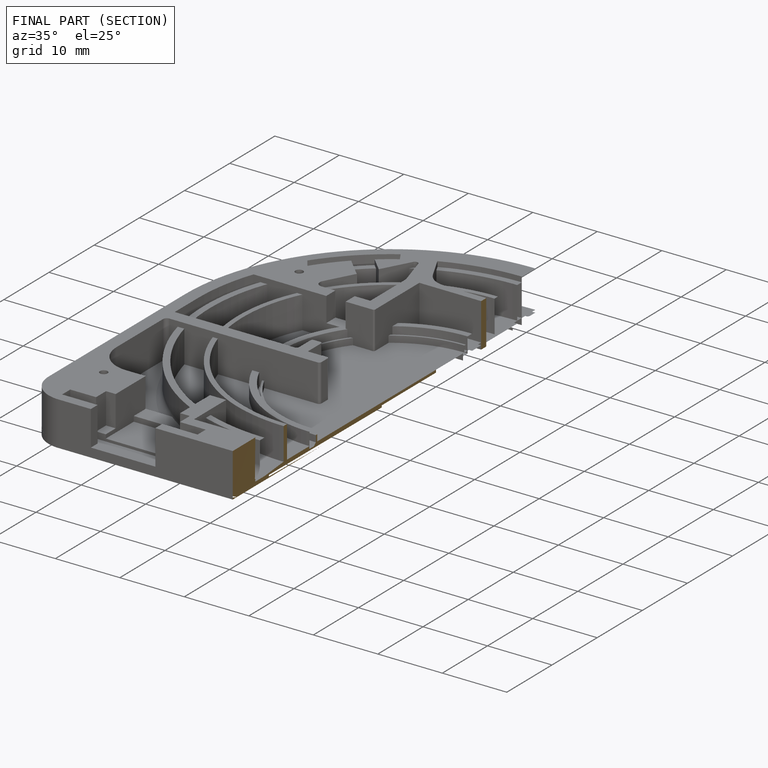
[diagram: finished part — half-section view (interior)]
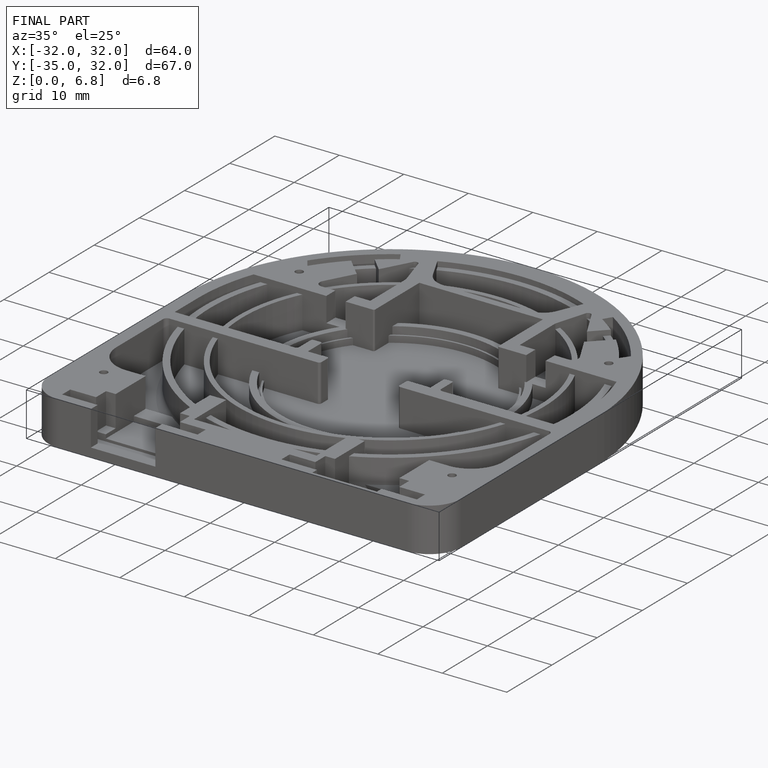
[diagram: finished part — iso view with bounding-box wireframe]
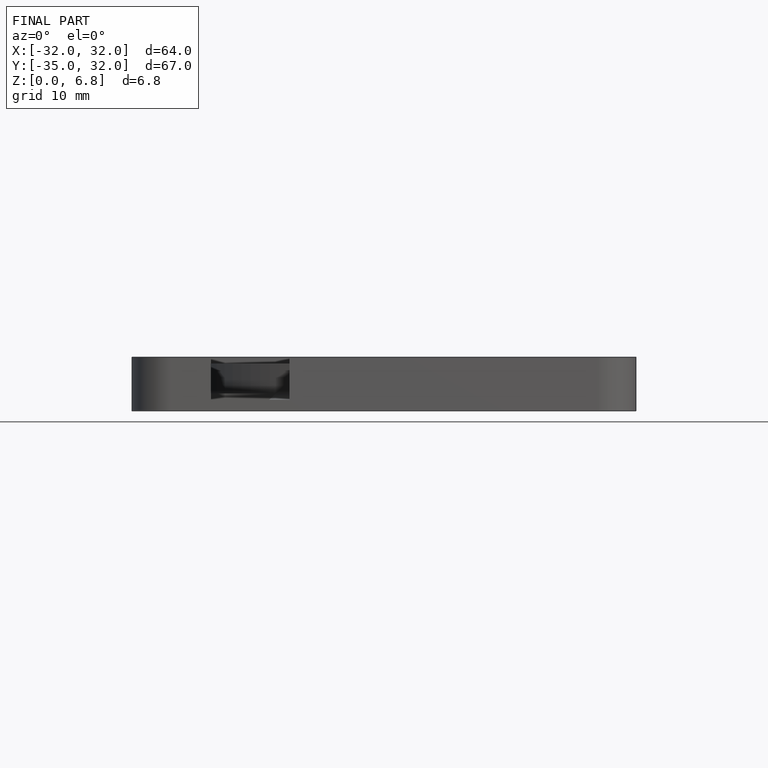
[diagram: finished part — front view with bounding-box wireframe]
